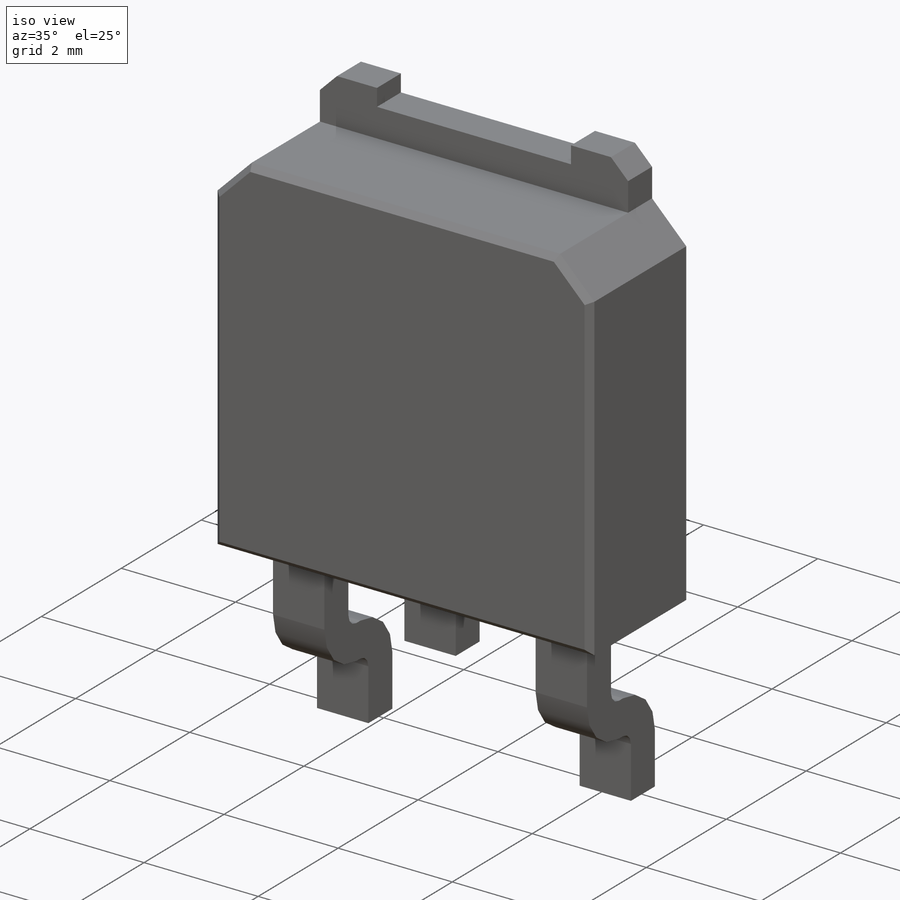
[diagram: iso view]
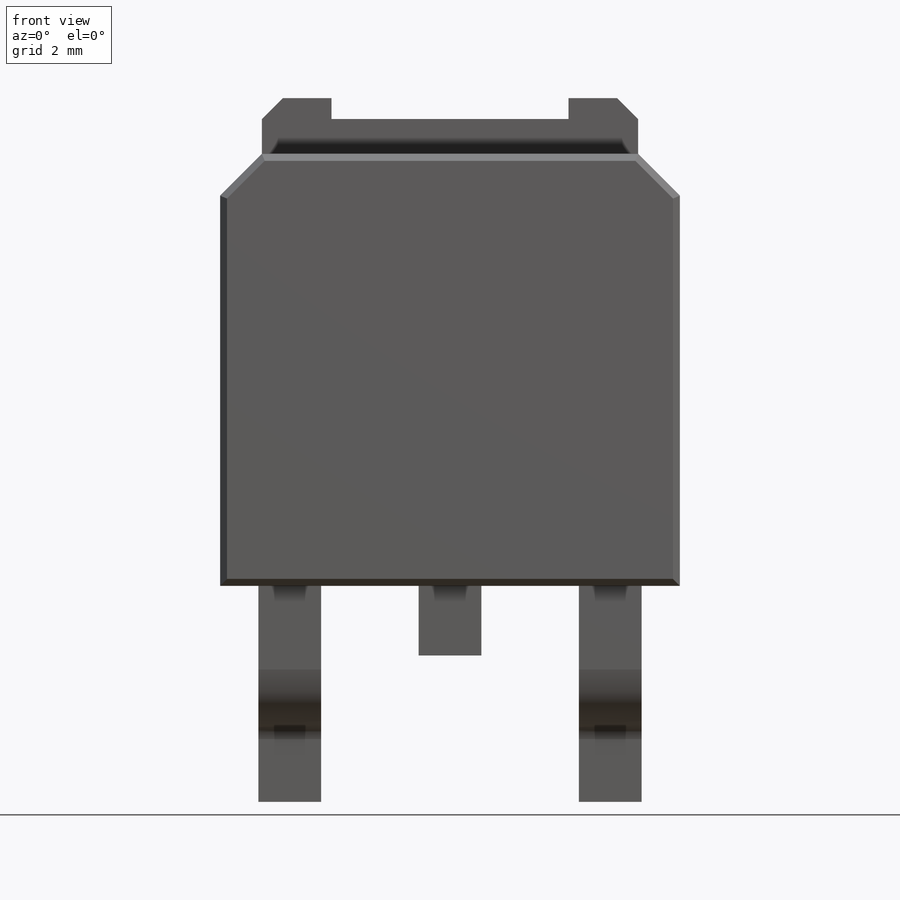
[diagram: front view]
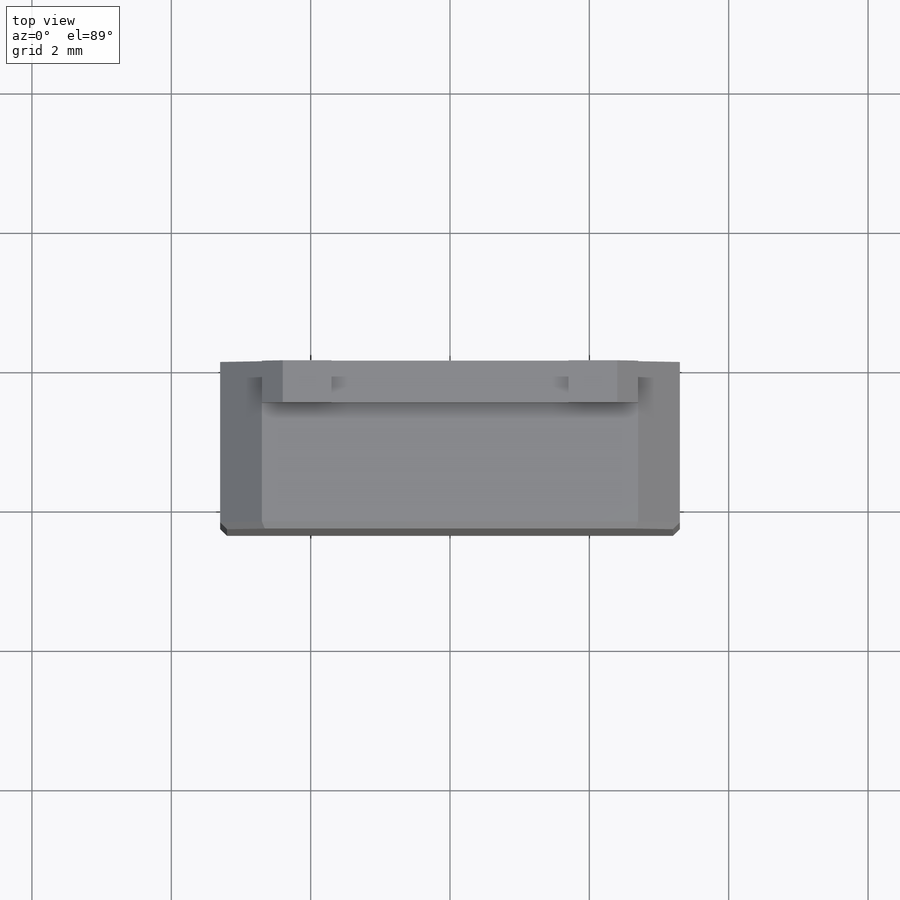
[diagram: top view]
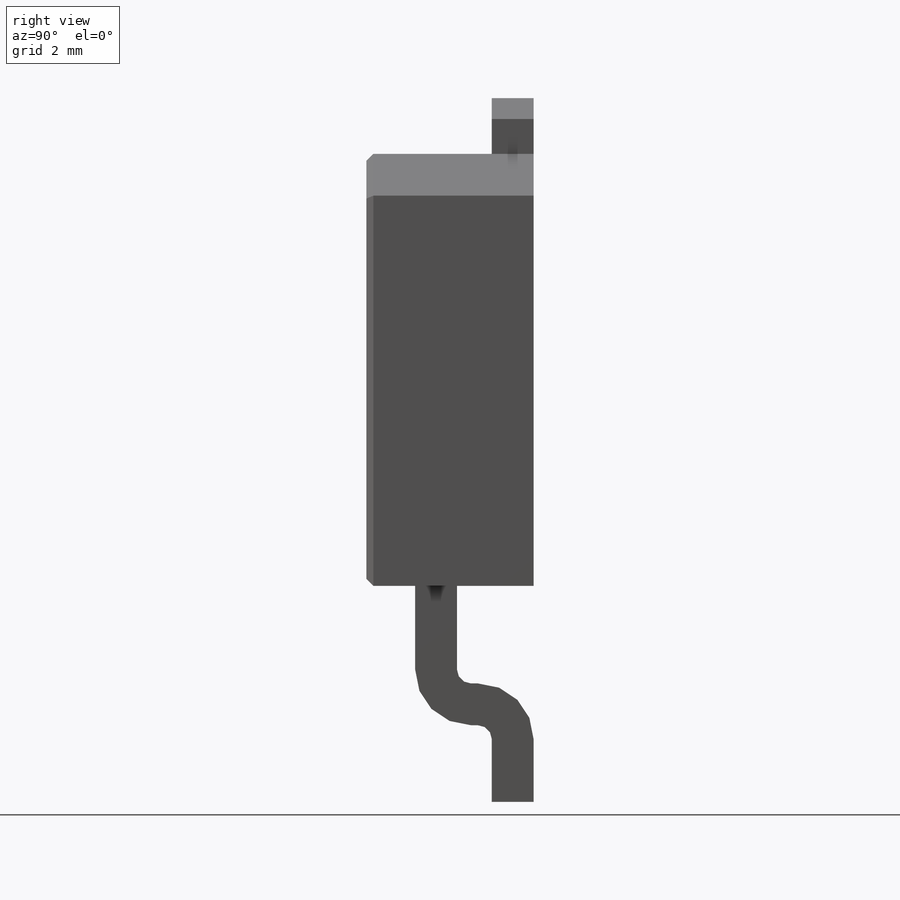
[diagram: right view]
SOLIDWORKS PART (.sldprt)
format: sldprt  version: not decoded by parser v0  size: 269,312 bytes
history: native  units: mm
features: sketch x6, plane x3, extrude x3, chamfer x3, material x1, sweep x1, mirror x1, cut_extrude x1 (+8 scaffold rows collapsed)
feature tree (27):
  scaffold x8  (default folders/planes/origin — collapsed)
  material  "Material <sin especificar>"
  plane  "Vorne"
  plane  "Oben"
  plane  "Rechts"
  sketch  "Skizze1"  dims[D1=6.6mm D2=6.2mm]
  extrude  "Linear austragen1"  Depth=2.4mm
  chamfer  "Fase2"  Distance=0.6mm Angle=45deg
  sketch  "Skizze2"  dims[D1=0.9mm D2=0.6mm]
  sketch  "3D-Skizze1"  dims[D1=0.5mm D2=0.5mm]
  sweep  "Austragung1"
  mirror  "Spiegeln1"
  sketch  "Skizze3"  dims[D1=0.9mm D2=0.6mm]
  extrude  "Linear austragen2"  Depth=1mm
  sketch  "Skizze4"  dims[D1=5.4mm D2=0.6mm]
  extrude  "Linear austragen3"  Depth=0.8mm
  sketch  "Skizze5"  dims[D1=3.4mm]
  cut_extrude  "Schnitt-Linear austragen1"  Depth=0.3mm
  chamfer  "Fase3"  Distance=0.3mm Angle=45deg
  chamfer  "Fase4"  Distance=0.1mm Angle=45deg
decode coverage: 13 of 15 modeling features carry decoded parameters
note: suppression state not decoded; provenance and decode notes live in map.json
